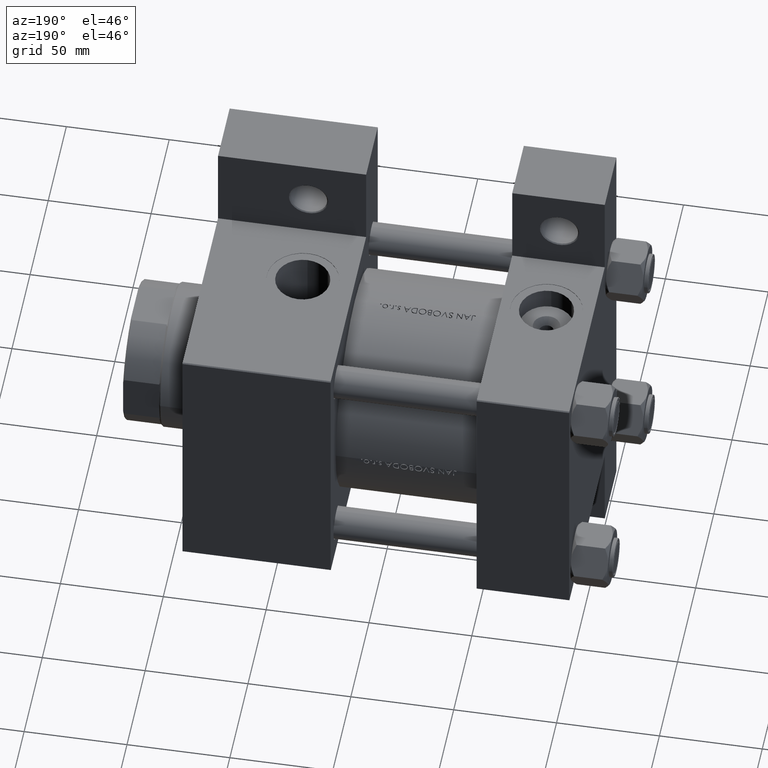
[diagram: clean part render]
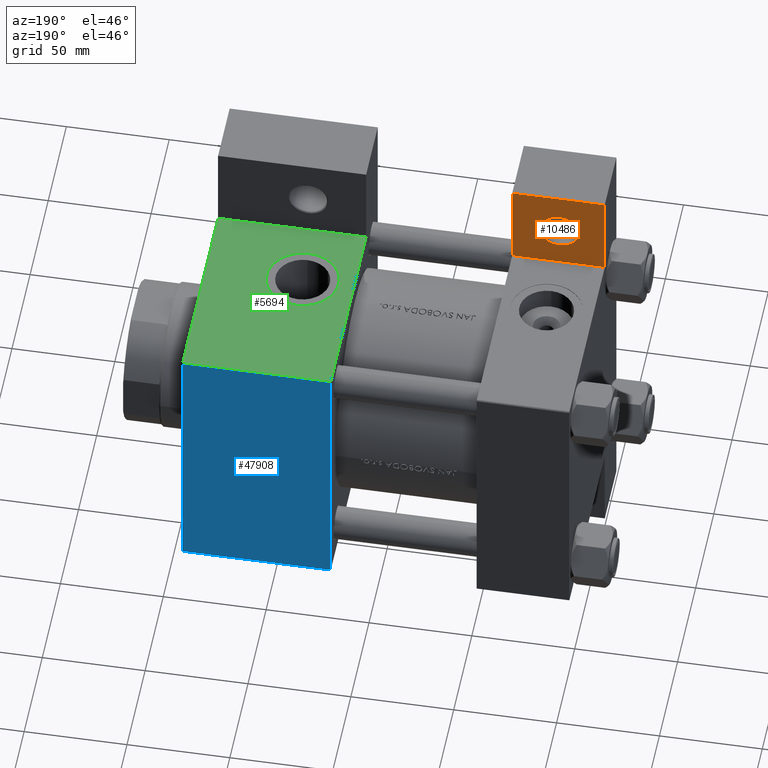
[diagram: same view with three faces highlighted in distinct colors, each labeled with its STEP entity id]
A machine part, auxiliary view with three faces highlighted in distinct colors.
Their STEP definitions:

[orange] entity #10486 — the highlighted planar face has unit normal (0, -1, 0).
#518 = FACE_OUTER_BOUND ( 'NONE', #23669, .T. ) ;
#1285 = AXIS2_PLACEMENT_3D ( 'NONE', #36873, #2169, #37118 ) ;
#1542 = CARTESIAN_POINT ( 'NONE',  ( -4.696407624884284320E-16, -107.9999999999999858, -33.00000000000000000 ) ) ;
#2169 = DIRECTION ( 'NONE',  ( 0.000000000000000000, 0.000000000000000000, -1.000000000000000000 ) ) ;
#4445 = VERTEX_POINT ( 'NONE', #6400 ) ;
#6400 = CARTESIAN_POINT ( 'NONE',  ( 1.020153353658907479E-15, -65.00000000000000000, -33.00000000000000000 ) ) ;
#7156 = DIRECTION ( 'NONE',  ( 0.000000000000000000, 0.000000000000000000, -1.000000000000000000 ) ) ;
#8366 = FACE_BOUND ( 'NONE', #24422, .T. ) ;
#10195 = CARTESIAN_POINT ( 'NONE',  ( -4.696407624884288264E-16, -108.0000000000000000, -33.00000000000000000 ) ) ;
#10486 = ADVANCED_FACE ( 'NONE', ( #8366, #518 ), #23824, .F. ) ;
#10751 = EDGE_CURVE ( 'NONE', #26476, #22778, #28329, .T. ) ;
#13183 = VERTEX_POINT ( 'NONE', #44427 ) ;
#13929 = ORIENTED_EDGE ( 'NONE', *, *, #47842, .T. ) ;
#16221 = DIRECTION ( 'NONE',  ( 0.000000000000000000, 0.000000000000000000, -1.000000000000000000 ) ) ;
#16416 = CARTESIAN_POINT ( 'NONE',  ( 45.00000000000000000, -107.9999999999999858, -33.00000000000000000 ) ) ;
#17080 = DIRECTION ( 'NONE',  ( -1.000000000000000000, 0.000000000000000000, 0.000000000000000000 ) ) ;
#19174 = LINE ( 'NONE', #31101, #26421 ) ;
#19512 = VERTEX_POINT ( 'NONE', #10195 ) ;
#19893 = VECTOR ( 'NONE', #17080, 1000.000000000000000 ) ;
#20208 = ORIENTED_EDGE ( 'NONE', *, *, #10751, .T. ) ;
#20285 = DIRECTION ( 'NONE',  ( -3.464637479412410313E-17, -1.000000000000000000, 0.000000000000000000 ) ) ;
#22778 = VERTEX_POINT ( 'NONE', #32128 ) ;
#23548 = AXIS2_PLACEMENT_3D ( 'NONE', #39280, #16221, #33690 ) ;
#23669 = EDGE_LOOP ( 'NONE', ( #20208, #41379, #40151, #13929 ) ) ;
#23721 = DIRECTION ( 'NONE',  ( 1.000000000000000000, 0.000000000000000000, 0.000000000000000000 ) ) ;
#23824 = PLANE ( 'NONE',  #23548 ) ;
#24422 = EDGE_LOOP ( 'NONE', ( #30904, #32922 ) ) ;
#24509 = AXIS2_PLACEMENT_3D ( 'NONE', #37074, #7156, #33282 ) ;
#26421 = VECTOR ( 'NONE', #23721, 1000.000000000000000 ) ;
#26476 = VERTEX_POINT ( 'NONE', #32376 ) ;
#26944 = CARTESIAN_POINT ( 'NONE',  ( 12.50049999999994910, -86.00000000000000000, -33.00000000000000000 ) ) ;
#28329 = LINE ( 'NONE', #16416, #43807 ) ;
#29096 = VERTEX_POINT ( 'NONE', #26944 ) ;
#30904 = ORIENTED_EDGE ( 'NONE', *, *, #40015, .T. ) ;
#31101 = CARTESIAN_POINT ( 'NONE',  ( -4.696407624884288264E-16, -108.0000000000000000, -33.00000000000000000 ) ) ;
#31792 = VECTOR ( 'NONE', #20285, 1000.000000000000000 ) ;
#32062 = CARTESIAN_POINT ( 'NONE',  ( 1.020153353658907084E-15, -65.00000000000001421, -33.00000000000000000 ) ) ;
#32128 = CARTESIAN_POINT ( 'NONE',  ( 45.00000000000000000, -65.00000000000000000, -33.00000000000000000 ) ) ;
#32376 = CARTESIAN_POINT ( 'NONE',  ( 45.00000000000000000, -108.0000000000000000, -33.00000000000000000 ) ) ;
#32922 = ORIENTED_EDGE ( 'NONE', *, *, #46814, .T. ) ;
#33282 = DIRECTION ( 'NONE',  ( -1.000000000000000000, 0.000000000000000000, 0.000000000000000000 ) ) ;
#33690 = DIRECTION ( 'NONE',  ( -1.000000000000000000, 0.000000000000000000, -0.000000000000000000 ) ) ;
#35503 = LINE ( 'NONE', #1542, #31792 ) ;
#36873 = CARTESIAN_POINT ( 'NONE',  ( 22.00000000000000000, -86.00000000000000000, -33.00000000000000000 ) ) ;
#37074 = CARTESIAN_POINT ( 'NONE',  ( 22.00000000000000000, -86.00000000000000000, -33.00000000000000000 ) ) ;
#37118 = DIRECTION ( 'NONE',  ( -1.000000000000000000, 0.000000000000000000, 0.000000000000000000 ) ) ;
#39280 = CARTESIAN_POINT ( 'NONE',  ( 0.000000000000000000, 0.000000000000000000, -33.00000000000000000 ) ) ;
#39879 = CIRCLE ( 'NONE', #24509, 9.499500000000049127 ) ;
#40015 = EDGE_CURVE ( 'NONE', #13183, #29096, #39879, .T. ) ;
#40083 = EDGE_CURVE ( 'NONE', #4445, #19512, #35503, .T. ) ;
#40151 = ORIENTED_EDGE ( 'NONE', *, *, #40083, .T. ) ;
#41379 = ORIENTED_EDGE ( 'NONE', *, *, #49852, .T. ) ;
#43807 = VECTOR ( 'NONE', #46829, 1000.000000000000000 ) ;
#44198 = LINE ( 'NONE', #32062, #19893 ) ;
#44427 = CARTESIAN_POINT ( 'NONE',  ( 31.49950000000004735, -86.00000000000000000, -33.00000000000000000 ) ) ;
#46814 = EDGE_CURVE ( 'NONE', #29096, #13183, #49023, .T. ) ;
#46829 = DIRECTION ( 'NONE',  ( 0.000000000000000000, 1.000000000000000000, 0.000000000000000000 ) ) ;
#47842 = EDGE_CURVE ( 'NONE', #19512, #26476, #19174, .T. ) ;
#49023 = CIRCLE ( 'NONE', #1285, 9.499500000000049127 ) ;
#49852 = EDGE_CURVE ( 'NONE', #22778, #4445, #44198, .T. ) ;

[blue] entity #47908 — the highlighted planar face has unit normal (0, -1, -0).
#662 = FACE_OUTER_BOUND ( 'NONE', #18094, .T. ) ;
#1700 = CARTESIAN_POINT ( 'NONE',  ( 188.0000000000000000, -64.50000000000002842, 65.00000000000000000 ) ) ;
#2089 = VERTEX_POINT ( 'NONE', #31139 ) ;
#2751 = LINE ( 'NONE', #17207, #17045 ) ;
#3684 = ORIENTED_EDGE ( 'NONE', *, *, #5348, .T. ) ;
#5348 = EDGE_CURVE ( 'NONE', #26854, #2089, #2751, .T. ) ;
#6991 = AXIS2_PLACEMENT_3D ( 'NONE', #16118, #31593, #30604 ) ;
#7212 = LINE ( 'NONE', #22661, #31620 ) ;
#7906 = CARTESIAN_POINT ( 'NONE',  ( 188.0000000000000000, -64.50000000000002842, 65.00000000000000000 ) ) ;
#8335 = LINE ( 'NONE', #30682, #34198 ) ;
#8648 = DIRECTION ( 'NONE',  ( 1.000000000000000000, 0.000000000000000000, 0.000000000000000000 ) ) ;
#10010 = VERTEX_POINT ( 'NONE', #1700 ) ;
#10626 = ORIENTED_EDGE ( 'NONE', *, *, #20381, .T. ) ;
#13630 = EDGE_CURVE ( 'NONE', #2089, #30672, #8335, .T. ) ;
#15997 = CARTESIAN_POINT ( 'NONE',  ( 115.9999999999999858, -64.50000000000002842, 65.00000000000000000 ) ) ;
#16118 = CARTESIAN_POINT ( 'NONE',  ( 188.0000000000000000, 65.00000000000002842, 65.00000000000001421 ) ) ;
#17045 = VECTOR ( 'NONE', #40774, 1000.000000000000000 ) ;
#17207 = CARTESIAN_POINT ( 'NONE',  ( 115.9999999999999858, 64.50000000000002842, 65.00000000000001421 ) ) ;
#18094 = EDGE_LOOP ( 'NONE', ( #26424, #3684, #38760, #10626 ) ) ;
#20381 = EDGE_CURVE ( 'NONE', #30672, #10010, #42626, .T. ) ;
#22661 = CARTESIAN_POINT ( 'NONE',  ( 188.0000000000000000, 65.00000000000002842, 65.00000000000001421 ) ) ;
#22806 = DIRECTION ( 'NONE',  ( 0.000000000000000000, -1.000000000000000000, -1.067522139062650425E-16 ) ) ;
#24713 = VECTOR ( 'NONE', #8648, 1000.000000000000000 ) ;
#26424 = ORIENTED_EDGE ( 'NONE', *, *, #31448, .F. ) ;
#26716 = DIRECTION ( 'NONE',  ( 0.000000000000000000, -1.000000000000000000, -1.067522139062650425E-16 ) ) ;
#26854 = VERTEX_POINT ( 'NONE', #43923 ) ;
#27516 = PLANE ( 'NONE',  #6991 ) ;
#30604 = DIRECTION ( 'NONE',  ( 0.000000000000000000, 1.000000000000000000, 1.067522139062650425E-16 ) ) ;
#30672 = VERTEX_POINT ( 'NONE', #15997 ) ;
#30682 = CARTESIAN_POINT ( 'NONE',  ( 115.9999999999999858, 65.00000000000002842, 65.00000000000001421 ) ) ;
#31139 = CARTESIAN_POINT ( 'NONE',  ( 115.9999999999999858, 64.50000000000002842, 65.00000000000001421 ) ) ;
#31448 = EDGE_CURVE ( 'NONE', #26854, #10010, #7212, .T. ) ;
#31593 = DIRECTION ( 'NONE',  ( 0.000000000000000000, 1.067522139062650425E-16, -1.000000000000000000 ) ) ;
#31620 = VECTOR ( 'NONE', #26716, 1000.000000000000000 ) ;
#34198 = VECTOR ( 'NONE', #22806, 1000.000000000000000 ) ;
#38760 = ORIENTED_EDGE ( 'NONE', *, *, #13630, .T. ) ;
#40774 = DIRECTION ( 'NONE',  ( -1.000000000000000000, 0.000000000000000000, 0.000000000000000000 ) ) ;
#42626 = LINE ( 'NONE', #7906, #24713 ) ;
#43923 = CARTESIAN_POINT ( 'NONE',  ( 188.0000000000000000, 64.50000000000002842, 65.00000000000001421 ) ) ;
#47908 = ADVANCED_FACE ( 'NONE', ( #662 ), #27516, .F. ) ;

[green] entity #5694 — the highlighted planar face has unit normal (0, 0, -1).
#867 = AXIS2_PLACEMENT_3D ( 'NONE', #49293, #46013, #45502 ) ;
#1130 = EDGE_LOOP ( 'NONE', ( #18840, #37920, #45839, #6107 ) ) ;
#1508 = LINE ( 'NONE', #9366, #23943 ) ;
#2270 = EDGE_CURVE ( 'NONE', #6287, #38786, #43632, .T. ) ;
#2901 = CIRCLE ( 'NONE', #44167, 17.49999999999999289 ) ;
#3453 = FACE_OUTER_BOUND ( 'NONE', #1130, .T. ) ;
#4082 = VERTEX_POINT ( 'NONE', #33879 ) ;
#4776 = EDGE_CURVE ( 'NONE', #22770, #15825, #19197, .T. ) ;
#5694 = ADVANCED_FACE ( 'NONE', ( #22441, #3453 ), #34856, .F. ) ;
#6107 = ORIENTED_EDGE ( 'NONE', *, *, #23932, .T. ) ;
#6287 = VERTEX_POINT ( 'NONE', #13851 ) ;
#6410 = AXIS2_PLACEMENT_3D ( 'NONE', #45771, #37906, #30581 ) ;
#7232 = CARTESIAN_POINT ( 'NONE',  ( 188.0000000000000000, -64.99999999999998579, 65.00000000000000000 ) ) ;
#7616 = VECTOR ( 'NONE', #7973, 1000.000000000000000 ) ;
#7973 = DIRECTION ( 'NONE',  ( 0.000000000000000000, 0.000000000000000000, -1.000000000000000000 ) ) ;
#9315 = EDGE_LOOP ( 'NONE', ( #28491, #42958 ) ) ;
#9366 = CARTESIAN_POINT ( 'NONE',  ( 188.0000000000000000, -64.99999999999998579, 64.50000000000002842 ) ) ;
#9456 = CARTESIAN_POINT ( 'NONE',  ( 188.0000000000000000, -64.99999999999998579, -33.00000000000000000 ) ) ;
#11777 = LINE ( 'NONE', #7232, #7616 ) ;
#13467 = DIRECTION ( 'NONE',  ( 0.000000000000000000, -1.000000000000000000, -8.673617379884036705E-17 ) ) ;
#13851 = CARTESIAN_POINT ( 'NONE',  ( 141.0000000000000000, -64.99999999999998579, 17.49999999999999289 ) ) ;
#15825 = VERTEX_POINT ( 'NONE', #24373 ) ;
#16764 = LINE ( 'NONE', #36524, #22277 ) ;
#18840 = ORIENTED_EDGE ( 'NONE', *, *, #42979, .F. ) ;
#19197 = LINE ( 'NONE', #30368, #47790 ) ;
#22106 = EDGE_CURVE ( 'NONE', #38786, #6287, #2901, .T. ) ;
#22277 = VECTOR ( 'NONE', #47670, 1000.000000000000000 ) ;
#22441 = FACE_BOUND ( 'NONE', #9315, .T. ) ;
#22770 = VERTEX_POINT ( 'NONE', #31622 ) ;
#23932 = EDGE_CURVE ( 'NONE', #15825, #39860, #16764, .T. ) ;
#23943 = VECTOR ( 'NONE', #36481, 1000.000000000000000 ) ;
#24373 = CARTESIAN_POINT ( 'NONE',  ( 115.9999999999999858, -64.99999999999998579, -33.00000000000000000 ) ) ;
#26209 = EDGE_CURVE ( 'NONE', #4082, #22770, #1508, .T. ) ;
#28491 = ORIENTED_EDGE ( 'NONE', *, *, #22106, .F. ) ;
#29864 = DIRECTION ( 'NONE',  ( 0.000000000000000000, 0.000000000000000000, -1.000000000000000000 ) ) ;
#30368 = CARTESIAN_POINT ( 'NONE',  ( 115.9999999999999858, -64.99999999999998579, 65.00000000000000000 ) ) ;
#30581 = DIRECTION ( 'NONE',  ( 0.000000000000000000, 0.000000000000000000, -1.000000000000000000 ) ) ;
#31622 = CARTESIAN_POINT ( 'NONE',  ( 115.9999999999999858, -64.99999999999998579, 64.50000000000002842 ) ) ;
#33879 = CARTESIAN_POINT ( 'NONE',  ( 188.0000000000000000, -64.99999999999998579, 64.50000000000002842 ) ) ;
#34856 = PLANE ( 'NONE',  #867 ) ;
#36481 = DIRECTION ( 'NONE',  ( -1.000000000000000000, 0.000000000000000000, 0.000000000000000000 ) ) ;
#36524 = CARTESIAN_POINT ( 'NONE',  ( 115.9999999999999858, -64.99999999999998579, -33.00000000000000000 ) ) ;
#37906 = DIRECTION ( 'NONE',  ( 0.000000000000000000, -1.000000000000000000, -8.673617379884036705E-17 ) ) ;
#37920 = ORIENTED_EDGE ( 'NONE', *, *, #26209, .T. ) ;
#38786 = VERTEX_POINT ( 'NONE', #42904 ) ;
#39860 = VERTEX_POINT ( 'NONE', #9456 ) ;
#42904 = CARTESIAN_POINT ( 'NONE',  ( 141.0000000000000000, -64.99999999999998579, -17.49999999999999289 ) ) ;
#42958 = ORIENTED_EDGE ( 'NONE', *, *, #2270, .F. ) ;
#42979 = EDGE_CURVE ( 'NONE', #4082, #39860, #11777, .T. ) ;
#43632 = CIRCLE ( 'NONE', #6410, 17.49999999999999289 ) ;
#44167 = AXIS2_PLACEMENT_3D ( 'NONE', #48434, #13467, #44385 ) ;
#44385 = DIRECTION ( 'NONE',  ( 0.000000000000000000, 0.000000000000000000, -1.000000000000000000 ) ) ;
#45502 = DIRECTION ( 'NONE',  ( 0.000000000000000000, -0.000000000000000000, 1.000000000000000000 ) ) ;
#45771 = CARTESIAN_POINT ( 'NONE',  ( 141.0000000000000000, -64.99999999999998579, 0.000000000000000000 ) ) ;
#45839 = ORIENTED_EDGE ( 'NONE', *, *, #4776, .T. ) ;
#46013 = DIRECTION ( 'NONE',  ( -0.000000000000000000, 1.000000000000000000, 0.000000000000000000 ) ) ;
#47670 = DIRECTION ( 'NONE',  ( 1.000000000000000000, 0.000000000000000000, 0.000000000000000000 ) ) ;
#47790 = VECTOR ( 'NONE', #29864, 1000.000000000000000 ) ;
#48434 = CARTESIAN_POINT ( 'NONE',  ( 141.0000000000000000, -64.99999999999998579, 0.000000000000000000 ) ) ;
#49293 = CARTESIAN_POINT ( 'NONE',  ( 188.0000000000000000, -64.99999999999998579, 65.00000000000000000 ) ) ;